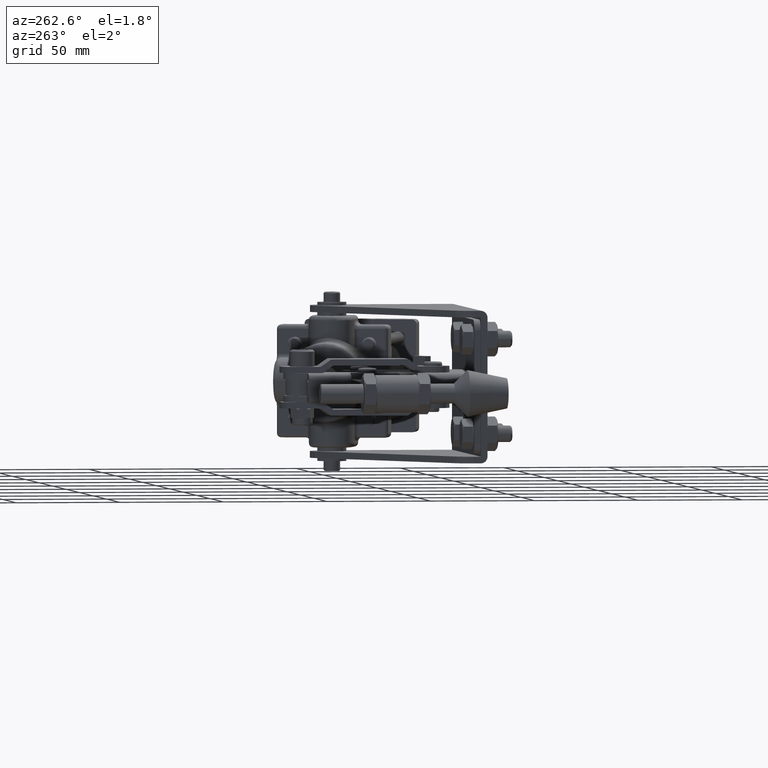
[diagram: clean part render]
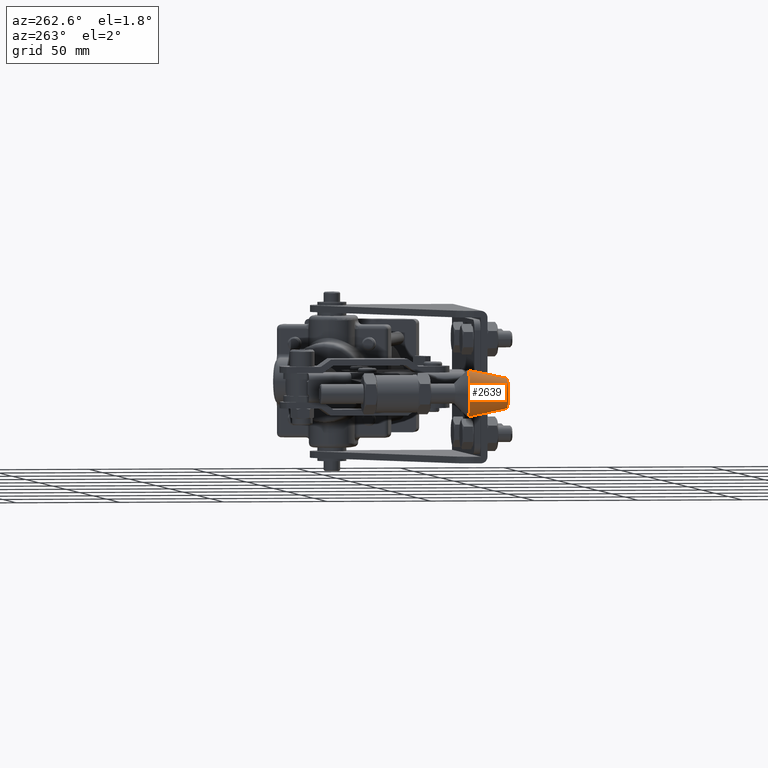
[diagram: same view with one face highlighted and labeled with its STEP entity id]
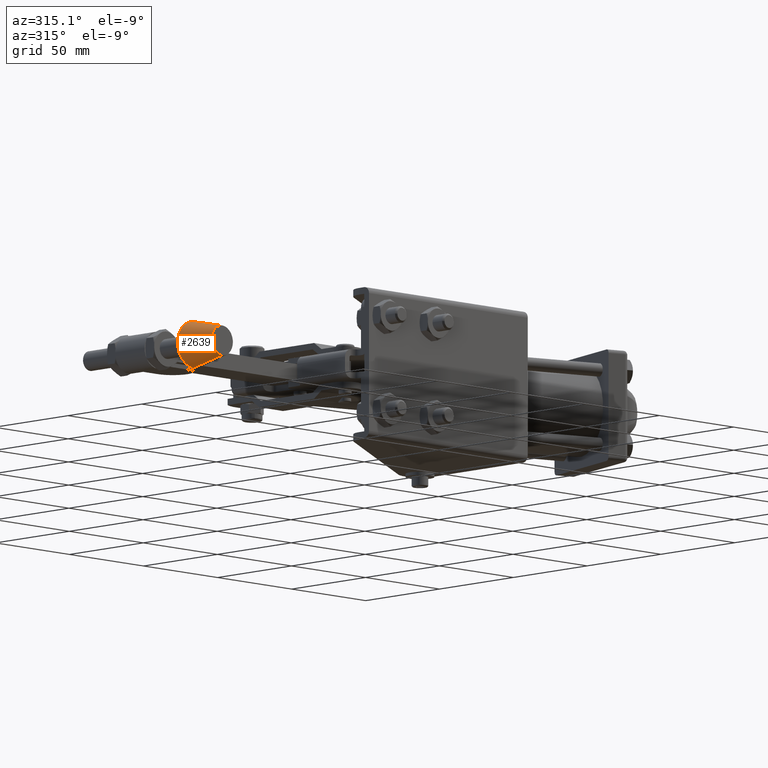
[diagram: same view with one face highlighted and labeled with its STEP entity id]
A machine part, auxiliary view. The second image highlights one B-rep face of the part: STEP entity #2639.
A second angle (auxiliary view) of the same face is appended — the face is thin or edge-on in the first view.
In plain terms, the highlighted conical surface has half-angle 11.744 deg.
Its self-contained STEP definition (entity closure, byte-faithful):
#117 = AXIS2_PLACEMENT_3D ( 'NONE', #12853, #30466, #15360 ) ;
#753 = CARTESIAN_POINT ( 'NONE',  ( -145.6652050237002500, 18.99999999999998600, 11.19634405166036800 ) ) ;
#1175 = DIRECTION ( 'NONE',  ( 0.0000000000000000000, 1.000000000000000000, 0.0000000000000000000 ) ) ;
#2546 = ORIENTED_EDGE ( 'NONE', *, *, #5892, .F. ) ;
#2639 = ADVANCED_FACE ( 'NONE', ( #22210 ), #25781, .T. ) ;
#4245 = VERTEX_POINT ( 'NONE', #5366 ) ;
#4992 = LINE ( 'NONE', #12554, #11662 ) ;
#5334 = VECTOR ( 'NONE', #19763, 1000.000000000000200 ) ;
#5366 = CARTESIAN_POINT ( 'NONE',  ( -146.1365804500478300, -1.372470695792103800E-014, -7.247633426298006200 ) ) ;
#5651 = EDGE_CURVE ( 'NONE', #28220, #28635, #12926, .T. ) ;
#5705 = CARTESIAN_POINT ( 'NONE',  ( -145.7661227979047600, -1.372470695792103800E-014, 7.247633426298006200 ) ) ;
#5892 = EDGE_CURVE ( 'NONE', #26851, #4245, #12897, .T. ) ;
#5954 = ORIENTED_EDGE ( 'NONE', *, *, #5651, .T. ) ;
#6707 = DIRECTION ( 'NONE',  ( -0.0000000000000000000, -1.000000000000000000, 0.0000000000000000000 ) ) ;
#7269 = CARTESIAN_POINT ( 'NONE',  ( -146.2374982242523300, 18.99999999999998600, -11.19634405166036800 ) ) ;
#8096 = AXIS2_PLACEMENT_3D ( 'NONE', #21719, #6707, #24269 ) ;
#8352 = EDGE_CURVE ( 'NONE', #4245, #28635, #4992, .T. ) ;
#10177 = EDGE_LOOP ( 'NONE', ( #11763, #2546, #24341, #5954 ) ) ;
#11662 = VECTOR ( 'NONE', #27622, 1000.000000000000200 ) ;
#11763 = ORIENTED_EDGE ( 'NONE', *, *, #8352, .F. ) ;
#12016 = LINE ( 'NONE', #17242, #5334 ) ;
#12554 = CARTESIAN_POINT ( 'NONE',  ( -146.1365804500478300, -1.372470695792103800E-014, -7.247633426298006200 ) ) ;
#12853 = CARTESIAN_POINT ( 'NONE',  ( -145.9513516239763100, -1.372470695792103800E-014, 0.0000000000000000000 ) ) ;
#12897 = CIRCLE ( 'NONE', #117, 7.250000000000000900 ) ;
#12926 = CIRCLE ( 'NONE', #8096, 11.20000000000000300 ) ;
#15360 = DIRECTION ( 'NONE',  ( -0.02554880359607258200, 0.0000000000000000000, -0.9996735760411041800 ) ) ;
#17242 = CARTESIAN_POINT ( 'NONE',  ( -145.7661227979047600, -1.372470695792103800E-014, 7.247633426298006200 ) ) ;
#18881 = EDGE_CURVE ( 'NONE', #26851, #28220, #12016, .T. ) ;
#19763 = DIRECTION ( 'NONE',  ( 0.005200272048348306800, 0.9790660733203211400, 0.2034762424553556400 ) ) ;
#21214 = CARTESIAN_POINT ( 'NONE',  ( -145.9513516239763100, -1.372470695792103800E-014, 0.0000000000000000000 ) ) ;
#21719 = CARTESIAN_POINT ( 'NONE',  ( -145.9513516239763100, 18.99999999999998600, 0.0000000000000000000 ) ) ;
#22210 = FACE_OUTER_BOUND ( 'NONE', #10177, .T. ) ;
#23861 = DIRECTION ( 'NONE',  ( 0.02554880359607258200, 0.0000000000000000000, 0.9996735760411041800 ) ) ;
#24269 = DIRECTION ( 'NONE',  ( -0.02554880359607483400, 0.0000000000000000000, -0.9996735760411040700 ) ) ;
#24341 = ORIENTED_EDGE ( 'NONE', *, *, #18881, .T. ) ;
#25781 = CONICAL_SURFACE ( 'NONE', #31322, 7.250000000000000900, 0.2049750003548368200 ) ;
#26851 = VERTEX_POINT ( 'NONE', #5705 ) ;
#27622 = DIRECTION ( 'NONE',  ( -0.005200272048348281700, 0.9790660733203211400, -0.2034762424553556400 ) ) ;
#28220 = VERTEX_POINT ( 'NONE', #753 ) ;
#28635 = VERTEX_POINT ( 'NONE', #7269 ) ;
#30466 = DIRECTION ( 'NONE',  ( -0.0000000000000000000, -1.000000000000000000, 0.0000000000000000000 ) ) ;
#31322 = AXIS2_PLACEMENT_3D ( 'NONE', #21214, #1175, #23861 ) ;